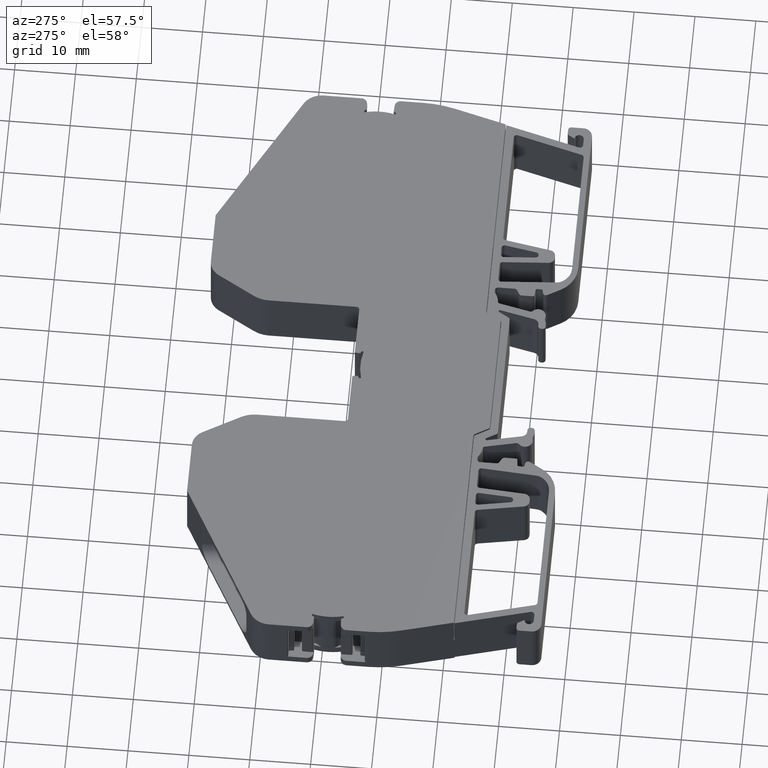
[diagram: clean part render]
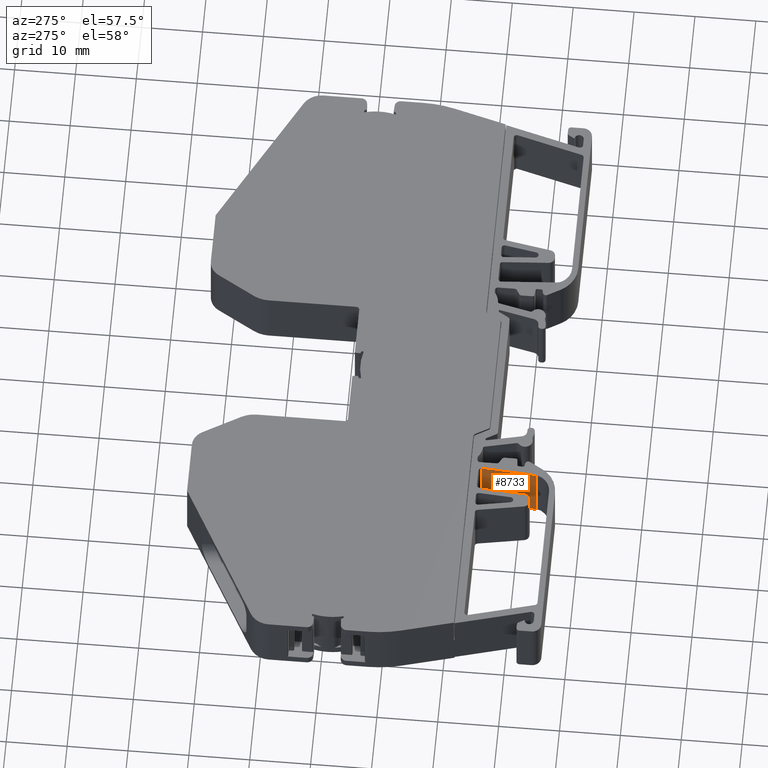
[diagram: same view with one face highlighted and labeled with its STEP entity id]
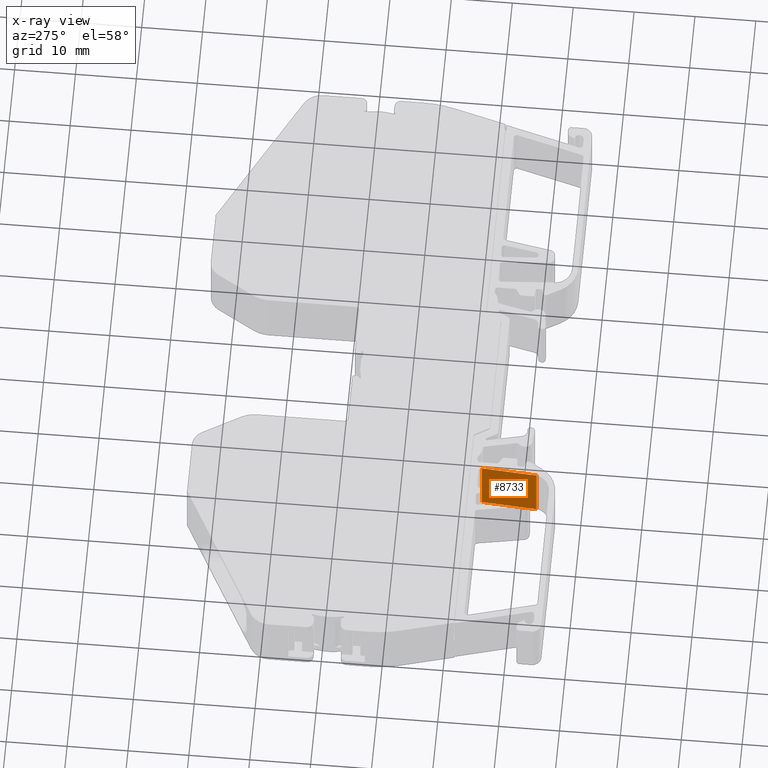
[diagram: x-ray of the same camera — body ghosted, the highlighted face saturated]
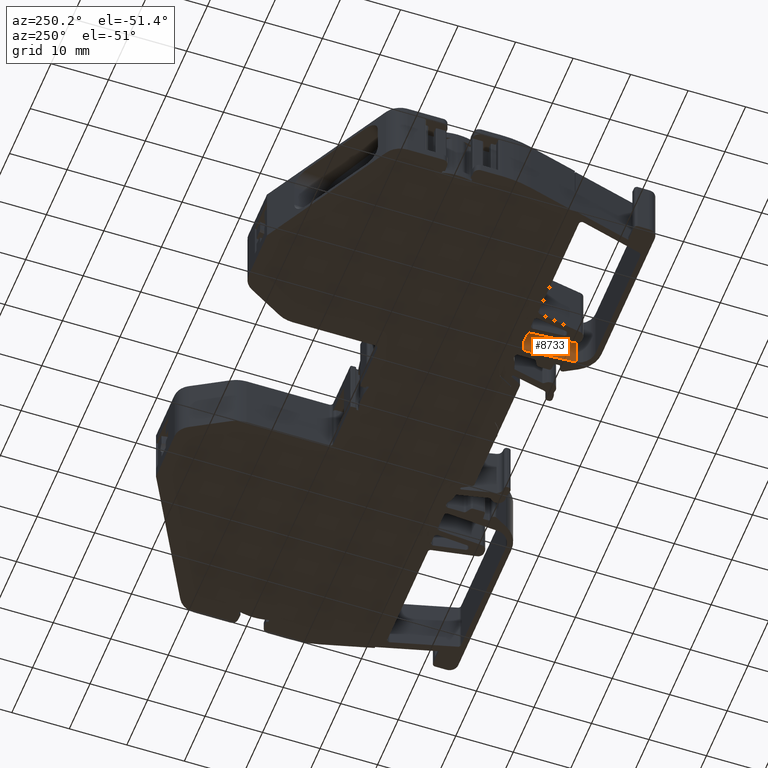
[diagram: same view with one face highlighted and labeled with its STEP entity id]
A machine part, auxiliary view. The second image highlights one B-rep face of the part: STEP entity #8733.
The next image is the same camera in x-ray: the body ghosted, the highlighted face saturated — about 0% of this face is hidden behind the body in this view.
A second angle (auxiliary view) of the same face is appended — the face is thin or edge-on in the first view.
In plain terms, the highlighted planar face has unit normal (-0.9976, 0.0694, 0).
Its self-contained STEP definition (entity closure, byte-faithful):
#1259 = CARTESIAN_POINT ( 'NONE',  ( 1311.821552904210200, 406.4079449210245200, 10.50000000000000000 ) ) ;
#1276 = LINE ( 'NONE', #1278, #8441 ) ;
#1278 = CARTESIAN_POINT ( 'NONE',  ( 1306.700415498515900, 332.8399527400685000, 0.1500000000000008300 ) ) ;
#1288 = LINE ( 'NONE', #1259, #8470 ) ;
#1290 = DIRECTION ( 'NONE',  ( 0.0000000000000000000, 0.0000000000000000000, -1.000000000000000000 ) ) ;
#1306 = CARTESIAN_POINT ( 'NONE',  ( 1311.194281895961900, 397.3968473904644700, 10.50000000000000000 ) ) ;
#1320 = LINE ( 'NONE', #1306, #8465 ) ;
#1331 = DIRECTION ( 'NONE',  ( 0.0000000000000000000, 0.0000000000000000000, -1.000000000000000000 ) ) ;
#1336 = DIRECTION ( 'NONE',  ( -0.06944289846848249200, -0.9975859280544688800, 0.0000000000000000000 ) ) ;
#2057 = AXIS2_PLACEMENT_3D ( 'NONE', #3324, #3270, #3252 ) ;
#3252 = DIRECTION ( 'NONE',  ( -0.06944289846848249200, -0.9975859280544688800, 0.0000000000000000000 ) ) ;
#3266 = FACE_OUTER_BOUND ( 'NONE', #5394, .T. ) ;
#3270 = DIRECTION ( 'NONE',  ( -0.9975859280544688800, 0.06944289846848249200, 0.0000000000000000000 ) ) ;
#3315 = PLANE ( 'NONE',  #2057 ) ;
#3324 = CARTESIAN_POINT ( 'NONE',  ( 1306.700415498515900, 332.8399527400685000, 10.50000000000000000 ) ) ;
#4621 = VECTOR ( 'NONE', #9622, 1000.000000000000100 ) ;
#5394 = EDGE_LOOP ( 'NONE', ( #13789, #13791, #13709, #13747 ) ) ;
#6289 = VERTEX_POINT ( 'NONE', #7687 ) ;
#6411 = VERTEX_POINT ( 'NONE', #7757 ) ;
#7687 = CARTESIAN_POINT ( 'NONE',  ( 1311.194281895961900, 397.3968473904644700, 10.40000000000000000 ) ) ;
#7757 = CARTESIAN_POINT ( 'NONE',  ( 1311.821552904210200, 406.4079449210245200, 10.40000000000000000 ) ) ;
#8441 = VECTOR ( 'NONE', #1336, 1000.000000000000100 ) ;
#8465 = VECTOR ( 'NONE', #1331, 1000.000000000000000 ) ;
#8470 = VECTOR ( 'NONE', #1290, 1000.000000000000000 ) ;
#8733 = ADVANCED_FACE ( 'NONE', ( #3266 ), #3315, .T. ) ;
#9613 = LINE ( 'NONE', #9616, #4621 ) ;
#9616 = CARTESIAN_POINT ( 'NONE',  ( 1306.700415498515900, 332.8399527400685000, 10.40000000000000000 ) ) ;
#9622 = DIRECTION ( 'NONE',  ( 0.06944289846848249200, 0.9975859280544688800, 0.0000000000000000000 ) ) ;
#10168 = CARTESIAN_POINT ( 'NONE',  ( 1311.821552904210200, 406.4079449210245200, 0.1500000000000008300 ) ) ;
#10260 = CARTESIAN_POINT ( 'NONE',  ( 1311.194281895961900, 397.3968473904644700, 0.1500000000000008300 ) ) ;
#12783 = EDGE_CURVE ( 'NONE', #6411, #14127, #1288, .T. ) ;
#12797 = EDGE_CURVE ( 'NONE', #14127, #14210, #1276, .T. ) ;
#12804 = EDGE_CURVE ( 'NONE', #6289, #14210, #1320, .T. ) ;
#13434 = EDGE_CURVE ( 'NONE', #6289, #6411, #9613, .T. ) ;
#13709 = ORIENTED_EDGE ( 'NONE', *, *, #12783, .T. ) ;
#13747 = ORIENTED_EDGE ( 'NONE', *, *, #12797, .T. ) ;
#13789 = ORIENTED_EDGE ( 'NONE', *, *, #12804, .F. ) ;
#13791 = ORIENTED_EDGE ( 'NONE', *, *, #13434, .T. ) ;
#14127 = VERTEX_POINT ( 'NONE', #10168 ) ;
#14210 = VERTEX_POINT ( 'NONE', #10260 ) ;